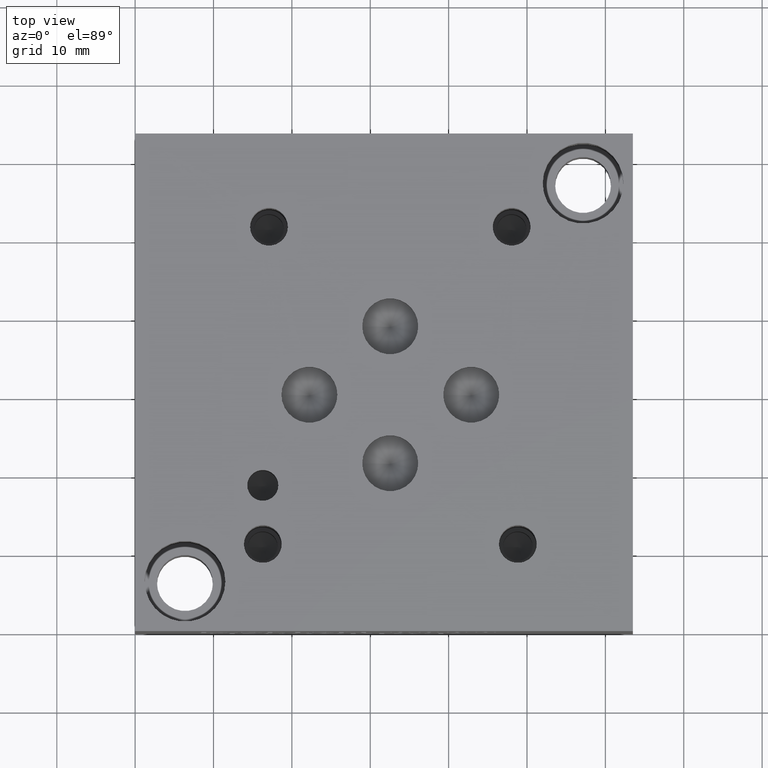
[diagram: clean part render]
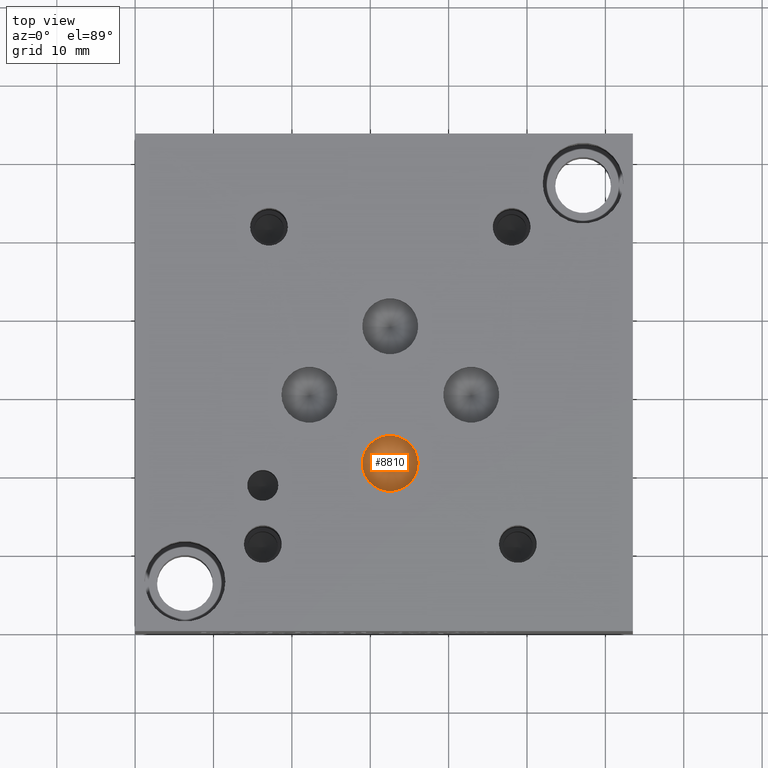
[diagram: same view with one face highlighted and labeled with its STEP entity id]
A machine part, top view. The second image highlights one B-rep face of the part: STEP entity #8810.
In plain terms, the highlighted conical surface has half-angle 60 deg.
Its self-contained STEP definition (entity closure, byte-faithful):
#46=CONICAL_SURFACE('',#9180,1.78435,1.0471975511966);
#94=CIRCLE('',#9181,3.5687);
#95=CIRCLE('',#9182,3.5687);
#895=FACE_OUTER_BOUND('',#1389,.T.);
#1389=EDGE_LOOP('',(#7713,#7714,#7715,#7716));
#2269=LINE('',#14996,#3125);
#3125=VECTOR('',#10743,1.78435);
#4189=VERTEX_POINT('',#14992);
#4190=VERTEX_POINT('',#14993);
#4191=VERTEX_POINT('',#14995);
#5384=EDGE_CURVE('',#4189,#4190,#94,.T.);
#5385=EDGE_CURVE('',#4190,#4191,#2269,.T.);
#5386=EDGE_CURVE('',#4190,#4189,#95,.T.);
#7713=ORIENTED_EDGE('',*,*,#5384,.T.);
#7714=ORIENTED_EDGE('',*,*,#5385,.T.);
#7715=ORIENTED_EDGE('',*,*,#5385,.F.);
#7716=ORIENTED_EDGE('',*,*,#5386,.T.);
#8810=ADVANCED_FACE('',(#895),#46,.F.);
#9180=AXIS2_PLACEMENT_3D('',#14991,#10739,#10740);
#9181=AXIS2_PLACEMENT_3D('',#14994,#10741,#10742);
#9182=AXIS2_PLACEMENT_3D('',#14997,#10744,#10745);
#10739=DIRECTION('center_axis',(0.,0.,1.));
#10740=DIRECTION('ref_axis',(1.,0.,0.));
#10741=DIRECTION('center_axis',(0.,0.,1.));
#10742=DIRECTION('ref_axis',(1.,0.,0.));
#10743=DIRECTION('',(0.866025403784439,1.06057523872491E-16,-0.5));
#10744=DIRECTION('center_axis',(0.,0.,1.));
#10745=DIRECTION('ref_axis',(1.,0.,0.));
#14991=CARTESIAN_POINT('Origin',(32.5374,21.4122,22.3094150471715));
#14992=CARTESIAN_POINT('',(36.1061,21.4122,23.33961));
#14993=CARTESIAN_POINT('',(28.9687,21.4122,23.33961));
#14994=CARTESIAN_POINT('Origin',(32.5374,21.4122,23.33961));
#14995=CARTESIAN_POINT('',(32.5374,21.4122,21.279220094343));
#14996=CARTESIAN_POINT('',(30.75305,21.4122,22.3094150471715));
#14997=CARTESIAN_POINT('Origin',(32.5374,21.4122,23.33961));